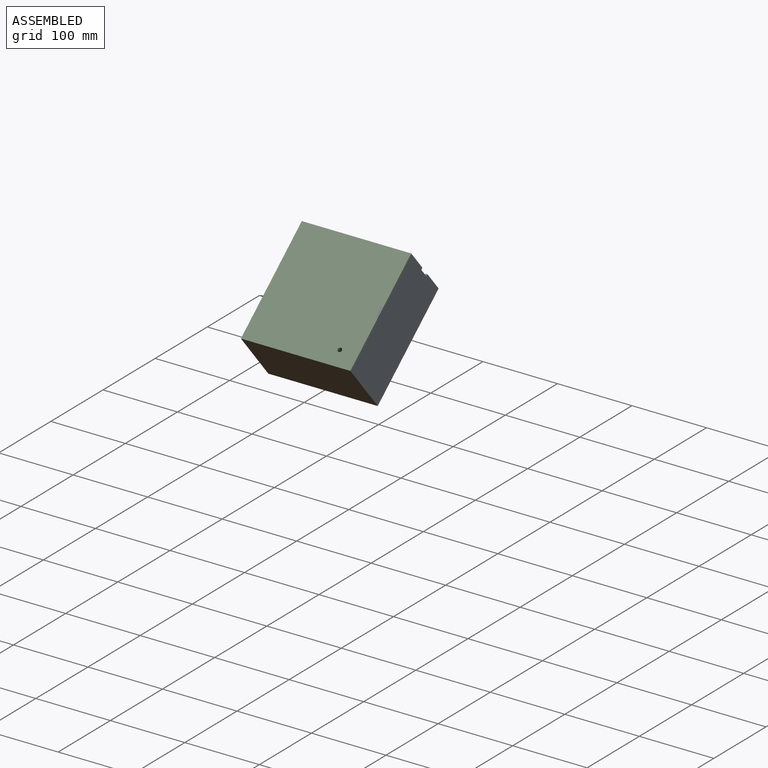
[diagram: assembled view]
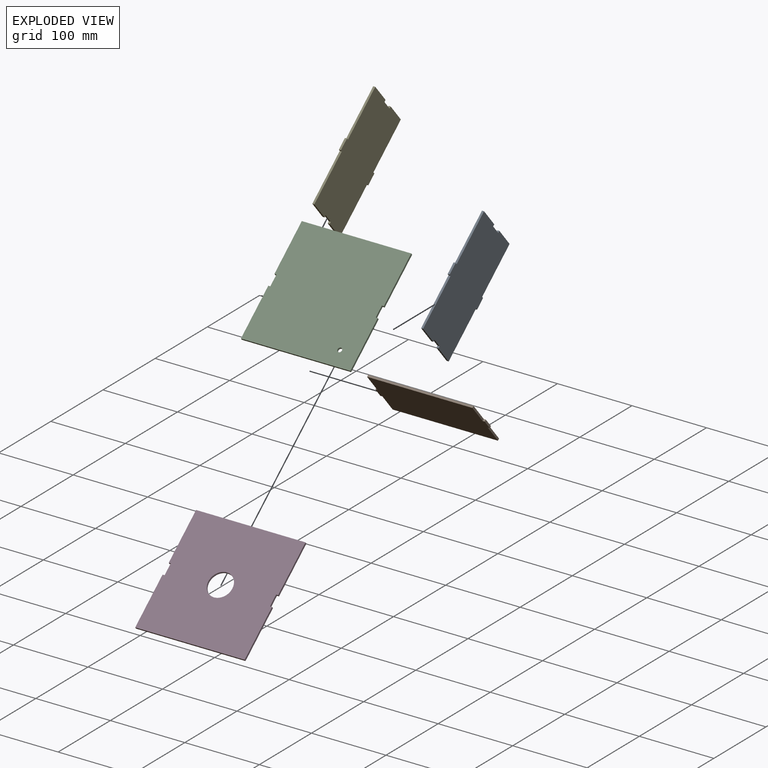
[diagram: exploded view]
GUIDED TOUR — MATED ASSEMBLY (Onshape document d76c6599e7d002cd686ecf26, AutoMate assembly d76c6599e7d002cd686ecf26_e36d5f2bbf383f3093187b48_688001cffb6befddc7492a28_default)

This assembly has 5 components, labeled P0..P4 below (a component is one placed occurrence of a part; the same part can appear more than once), held together by 4 mates. A mate is a constraint between two components; its type names the relative motion it leaves free:
  FASTENED — locks the two components together rigidly (no relative motion).
Axis/direction vectors are unit vectors and 'through' points are millimeter coordinates, both in the assembly's world frame.

MATES
  1. FASTENED "Fastened 3": P4 <-> P3, direction (0.000, -0.766, -0.643) through (92.63, 109.84, 14.27) mm
  2. FASTENED "Fastened 4": P1 <-> P4, direction (0.000, -0.643, 0.766) through (92.63, 28.08, 7.14) mm
  3. FASTENED "Fastened 1": P0 <-> P2, direction (0.000, -0.766, -0.643) through (236.77, 59.09, 74.74) mm
  4. FASTENED "Fastened 2": P0 <-> P3, direction (0.000, 0.766, 0.643) through (236.77, 121.51, 24.06) mm

ASSEMBLY ORDER
  1. P2 — the base component [order verified]
  2. P1 [order verified]
  3. P0 [order verified]
  4. P3 [order verified]
  5. P4 [order verified]
Order-tag legend:
  [order verified] — this step's position reverses a verified removal order: the component was checked to insert without passing through the ones already placed.

Of the 5 components, 5 carry the full construction recipe — the FeatureScript program that regenerates the part's solid from scratch; the rest are supplied as boundary geometry only.
Each toured component is shown spotlighted twice — in the assembled view, then in the exploded view, where a leader line traces a displaced component back to its assembled socket (saturated green if recipe-attached, orange if geometry-only; every other component desaturated gray) — followed by its recipe or geometry summary and the mates that hold it.
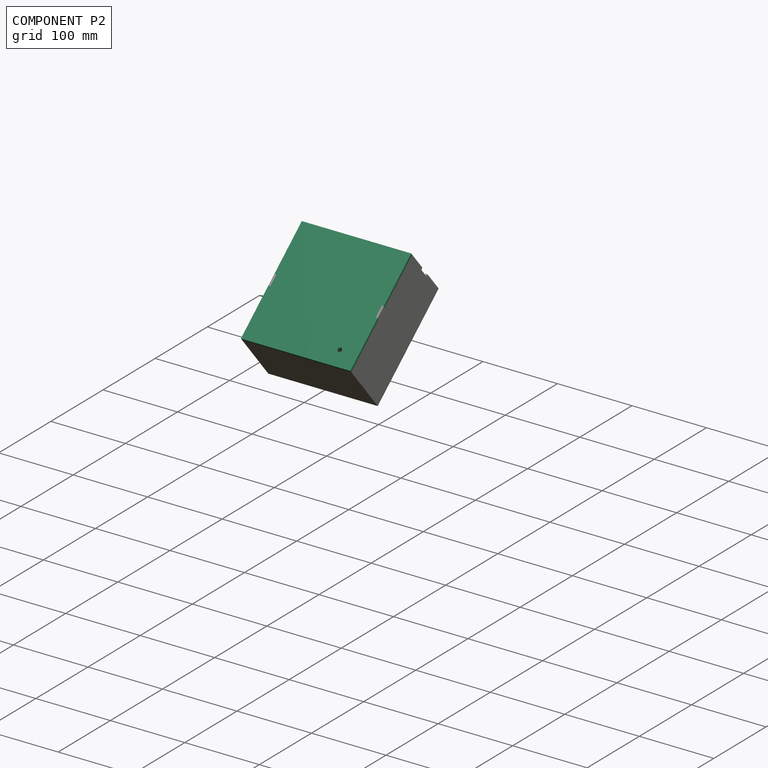
[diagram: component P2 — assembled]
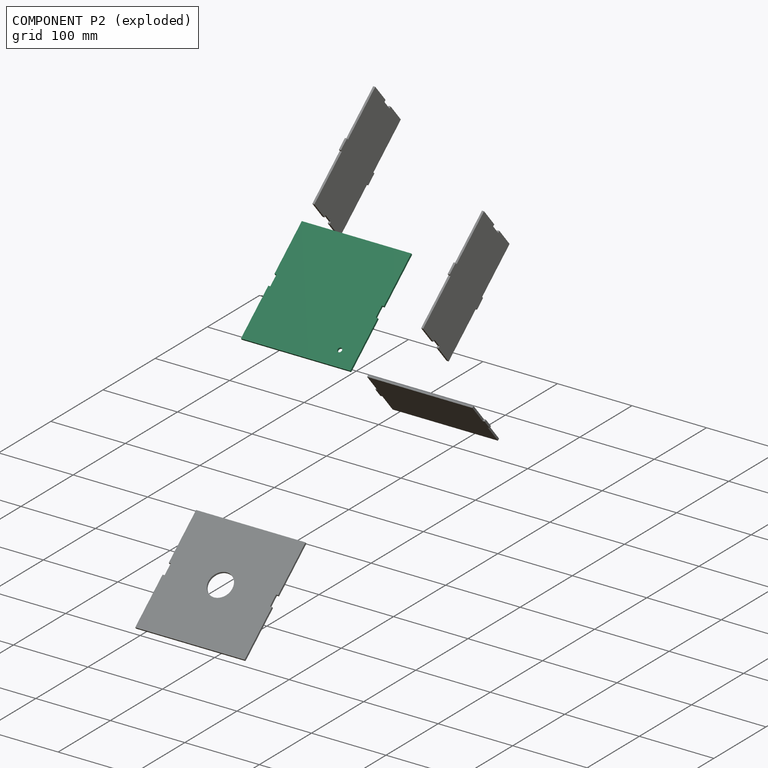
[diagram: component P2 — exploded]
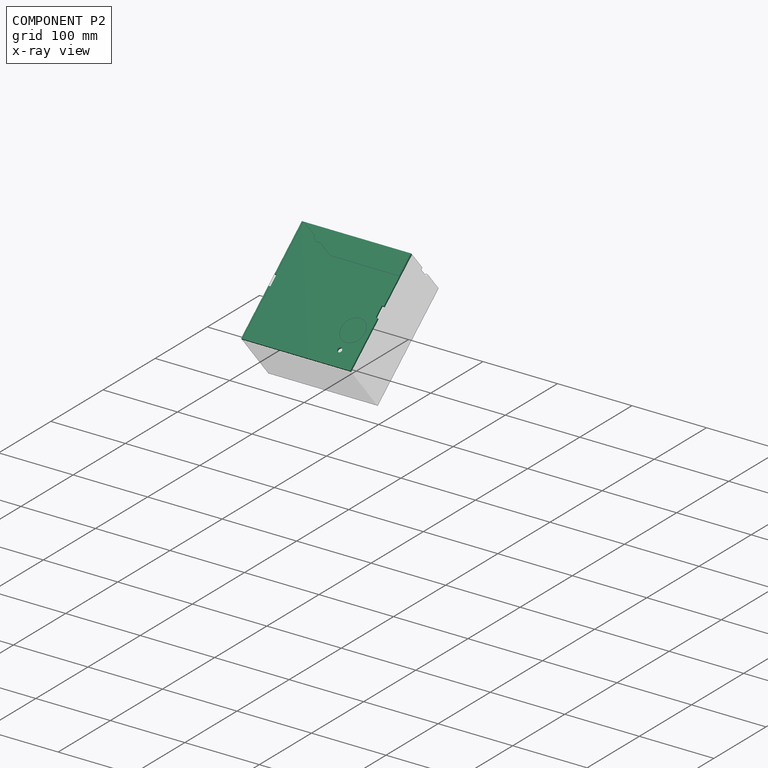
[diagram: component P2 — x-ray view]
COMPONENT P2 — recipe-attached (CADFS 00246261, mesh-verified: the recipe's output STEP matches this component's geometry to below the mesh-comparison resolution (tessellation chordal tolerance ~0.318 mm)).
Held by: FASTENED mate "Fastened 1" to P0.
Construction recipe (FeatureScript — the CAD program that rebuilds this solid; sketch coordinates are in the units given by the * unit suffixes, e.g. mm):

FeatureScript 1511;
import(path : "onshape/std/geometry.fs", version : "1511.0");
import(path : "onshape/std/common.fs", version : "1511.0");
const mm = millimeter;
const VERTEX = EntityType.VERTEX;
const EDGE = EntityType.EDGE;
const FACE = EntityType.FACE;
const BODY = EntityType.BODY;
function v(x, y){return vector(x, y);}
function OD(order){return orderDisambiguation(order);}
function OSD(set){return originalSetDisambiguation(set);}
function TD(topology){return topologyDisambiguation(topology);}
function TDD(query){return trueDependencyDisambiguation(query);}
function sQuery(a, b, c) {return sketchEntityQuery(a, b, c);}

annotation { "Feature Type Name" : "Feature", "Feature Type Description" : "" }
export const myFeature = defineFeature(function(context is Context, id is Id, definition is map)
    precondition{}
    {
        {
            var Q0;
            Q0=qCreatedBy(makeId("Front.planeOp"),FACE);
            var sketch = newSketch(context, id + "F0", { "sketchPlane" : qUnion([Q0])});
            skLineSegment(sketch, "E0.bottom", {"start": v(-81.08, 118.1) * mm, "end": v(65.81, 118.1) * mm});
            skLineSegment(sketch, "E0.top", {"start": v(-81.08, -34.3) * mm, "end": v(65.81, -34.3) * mm});
            skLineSegment(sketch, "E0.left", {"start": v(-81.08, 118.1) * mm, "end": v(-81.08, -34.3) * mm});
            skLineSegment(sketch, "E0.right", {"start": v(65.81, 118.1) * mm, "end": v(65.81, -34.3) * mm});
            skLineSegment(sketch, "E1", {"start": v(0, 120.84) * mm, "end": v(0, 118.1) * mm});
            skLineSegment(sketch, "E2.MirrorCS", {"start": v(-15.24, 120.84) * mm, "end": v(-15.24, 118.1) * mm});
            skLineSegment(sketch, "E3.MirrorCS", {"start": v(-7.62, -37.05) * mm, "end": v(-15.24, -37.05) * mm});
            skLineSegment(sketch, "E4.MirrorCS", {"start": v(-15.24, -37.05) * mm, "end": v(-15.24, -34.3) * mm});
            skLineSegment(sketch, "E5.MirrorCS", {"start": v(-7.62, -37.05) * mm, "end": v(0, -37.05) * mm});
            skLineSegment(sketch, "E6.MirrorCS", {"start": v(0, -37.05) * mm, "end": v(0, -34.3) * mm});
            skLineSegment(sketch, "E7", {"start": v(-78.33, 49.52) * mm, "end": v(-81.08, 49.52) * mm});
            skLineSegment(sketch, "E8", {"start": v(-15.24, 120.84) * mm, "end": v(0, 120.84) * mm});
            skLineSegment(sketch, "E9.MirrorCS", {"start": v(-78.33, 34.28) * mm, "end": v(-81.08, 34.28) * mm});
            skLineSegment(sketch, "E10", {"start": v(-78.33, 49.52) * mm, "end": v(-78.33, 34.28) * mm});
            skLineSegment(sketch, "E11", {"start": v(-7.63, 118.1) * mm, "end": v(-7.63, -34.3) * mm, "construction": true});
            skLineSegment(sketch, "E12.MirrorCS", {"start": v(63.07, 49.52) * mm, "end": v(65.81, 49.52) * mm});
            skLineSegment(sketch, "E13.MirrorCS", {"start": v(63.07, 49.52) * mm, "end": v(63.07, 34.28) * mm});
            skLineSegment(sketch, "E14.MirrorCS", {"start": v(63.07, 34.28) * mm, "end": v(65.81, 34.28) * mm});
            skCircle(sketch, "E15", {"center": v(40.8, -14.25) * mm, "radius": 2.92 * mm});
            skSolve(sketch);
        }
        {
            var Q0;
            {var subQ0=sQuery(id+"F0.wireOp",EDGE,"E0.left");Q0=makeQuery(id+"F0.imprint","IMPRINT",FACE,{"disambiguationData":[TD([[makeQuery(id+"F0.imprint","IMPRINT",EDGE,{"derivedFrom":subQ0}),1.0]])]});}
            var Q1;
            Q1=makeQuery(id+"F0.imprint","IMPRINT",FACE,{"disambiguationData":[TD([[makeQuery(id+"F0.imprint","IMPRINT",EDGE,{"derivedFrom":sQuery(id+"F0.wireOp",EDGE,"Afd0L3Ea-njuU-8vJm-DEHg-CMs5uG4HDwlt")}),-1.0]])]});
            extrude(context, id + "F1", {"entities" : qUnion([Q0, Q1]), "depth" : 2.74 * mm});
        }
    });
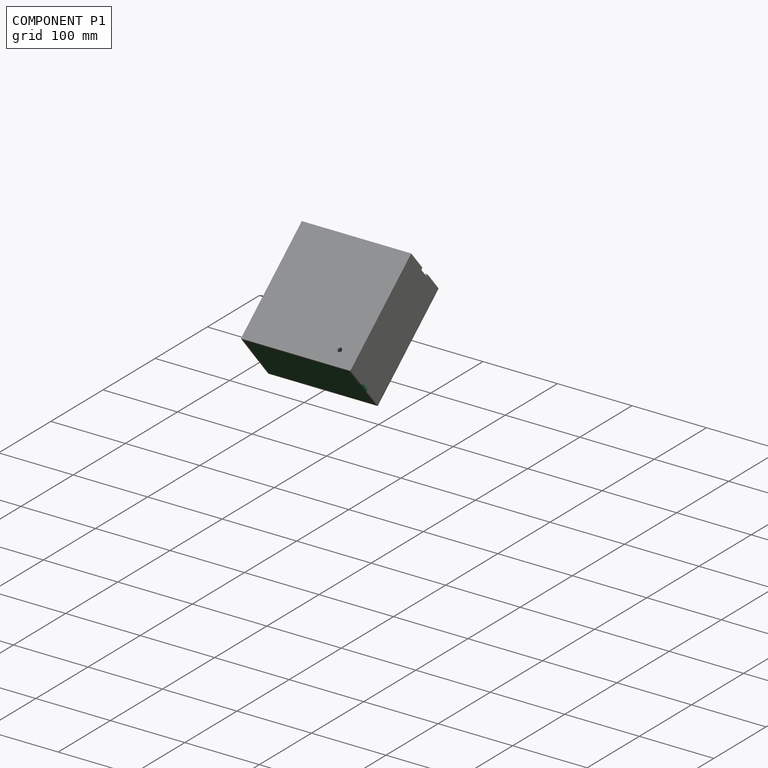
[diagram: component P1 — assembled]
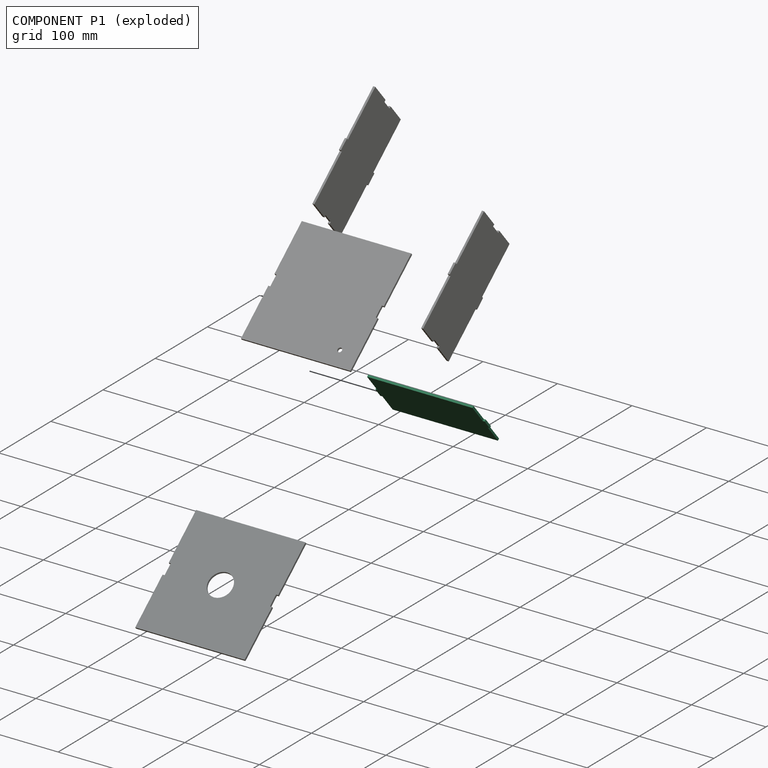
[diagram: component P1 — exploded]
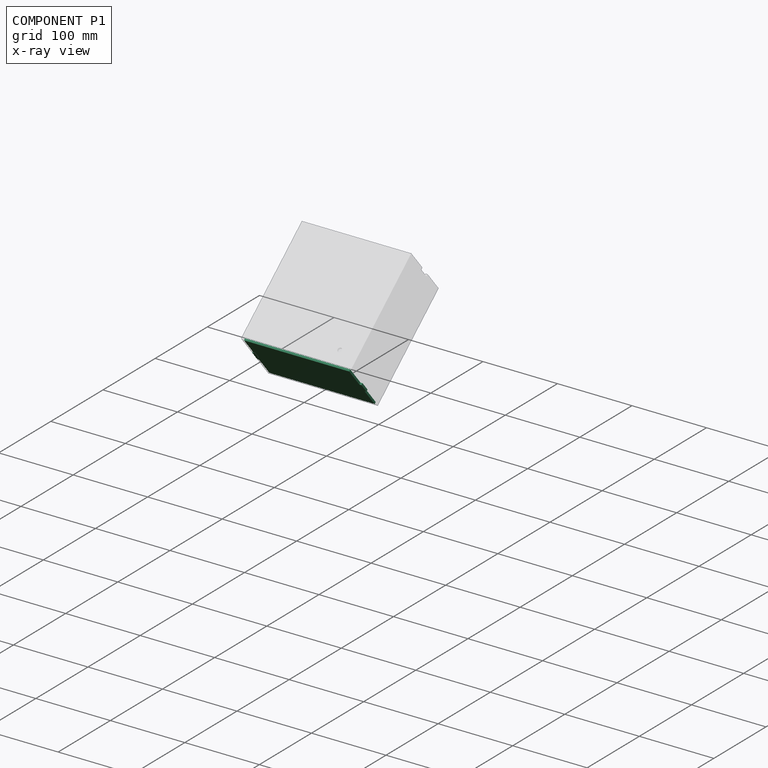
[diagram: component P1 — x-ray view]
COMPONENT P1 — recipe-attached (CADFS 00246263, mesh-verified: the recipe's output STEP matches this component's geometry to below the mesh-comparison resolution (tessellation chordal tolerance ~0.248 mm)).
Held by: FASTENED mate "Fastened 4" to P4.
Construction recipe (FeatureScript — the CAD program that rebuilds this solid; sketch coordinates are in the units given by the * unit suffixes, e.g. mm):

FeatureScript 1511;
import(path : "onshape/std/geometry.fs", version : "1511.0");
import(path : "onshape/std/common.fs", version : "1511.0");
const mm = millimeter;
const VERTEX = EntityType.VERTEX;
const EDGE = EntityType.EDGE;
const FACE = EntityType.FACE;
const BODY = EntityType.BODY;
function v(x, y){return vector(x, y);}
function OD(order){return orderDisambiguation(order);}
function OSD(set){return originalSetDisambiguation(set);}
function TD(topology){return topologyDisambiguation(topology);}
function TDD(query){return trueDependencyDisambiguation(query);}
function sQuery(a, b, c) {return sketchEntityQuery(a, b, c);}

annotation { "Feature Type Name" : "Feature", "Feature Type Description" : "" }
export const myFeature = defineFeature(function(context is Context, id is Id, definition is map)
    precondition{}
    {
        {
            var Q0;
            Q0=qCreatedBy(makeId("Front.planeOp"),FACE);
            var sketch = newSketch(context, id + "F0", { "sketchPlane" : qUnion([Q0])});
            skLineSegment(sketch, "E0.bottom", {"start": v(-87.2, 30.48) * mm, "end": v(54.2, 30.48) * mm});
            skLineSegment(sketch, "E0.top", {"start": v(-87.2, -45.72) * mm, "end": v(54.2, -45.72) * mm});
            skLineSegment(sketch, "E0.left", {"start": v(-87.2, 30.48) * mm, "end": v(-87.2, -45.72) * mm});
            skLineSegment(sketch, "E0.right", {"start": v(54.2, 30.48) * mm, "end": v(54.2, -45.72) * mm});
            skLineSegment(sketch, "E1", {"start": v(-16.5, 30.48) * mm, "end": v(-16.5, -45.72) * mm, "construction": true});
            skLineSegment(sketch, "E2", {"start": v(-87.2, -7.62) * mm, "end": v(54.2, -7.62) * mm, "construction": true});
            skLineSegment(sketch, "E3", {"start": v(-24.11, 27.73) * mm, "end": v(-24.11, 30.48) * mm});
            skLineSegment(sketch, "E4.MirrorCS", {"start": v(-8.87, 27.73) * mm, "end": v(-8.87, 30.48) * mm});
            skLineSegment(sketch, "E5", {"start": v(-24.11, 27.73) * mm, "end": v(-8.87, 27.73) * mm});
            skLineSegment(sketch, "E6.MirrorCS", {"start": v(-24.11, -42.98) * mm, "end": v(-8.87, -42.98) * mm});
            skLineSegment(sketch, "E7.MirrorCS", {"start": v(-8.87, -42.98) * mm, "end": v(-8.87, -45.72) * mm});
            skLineSegment(sketch, "E8.MirrorCS", {"start": v(-24.11, -42.98) * mm, "end": v(-24.11, -45.72) * mm});
            skLineSegment(sketch, "E9.MirrorCS", {"start": v(-89.94, 0) * mm, "end": v(-87.2, 0) * mm});
            skLineSegment(sketch, "E10.MirrorCS", {"start": v(-89.94, -15.24) * mm, "end": v(-87.2, -15.24) * mm});
            skLineSegment(sketch, "E11.MirrorCS", {"start": v(-89.94, 0) * mm, "end": v(-89.94, -15.24) * mm});
            skLineSegment(sketch, "E12.MirrorCS", {"start": v(56.95, 0) * mm, "end": v(56.95, -15.24) * mm});
            skLineSegment(sketch, "E13.MirrorCS", {"start": v(56.95, 0) * mm, "end": v(54.2, 0) * mm});
            skLineSegment(sketch, "E14.MirrorCS", {"start": v(56.95, -15.24) * mm, "end": v(54.2, -15.24) * mm});
            skSolve(sketch);
        }
        {
            var Q0;
            {var subQ10=sQuery(id+"F0.wireOp",EDGE,"E3");Q0=makeQuery(id+"F0.imprint","IMPRINT",FACE,{"disambiguationData":[TD([[makeQuery(id+"F0.imprint","IMPRINT",EDGE,{"derivedFrom":subQ10}),1.0]])]});}
            var Q1;
            Q1=makeQuery(id+"F0.imprint","IMPRINT",FACE,{"disambiguationData":[TD([[makeQuery(id+"F0.imprint","IMPRINT",EDGE,{"derivedFrom":sQuery(id+"F0.wireOp",EDGE,"2a6bfd6c-9bbf-46f3-97a7-c3288baa15e50.MirrorCS")}),-1.0]])]});
            var Q2;
            {var subQ0=sQuery(id+"F0.wireOp",EDGE,"E9.MirrorCS");Q2=makeQuery(id+"F0.imprint","IMPRINT",FACE,{"disambiguationData":[TD([[makeQuery(id+"F0.imprint","IMPRINT",EDGE,{"derivedFrom":subQ0}),-1.0]])]});}
            var Q3;
            Q3=makeQuery(id+"F0.imprint","IMPRINT",FACE,{"disambiguationData":[TD([[makeQuery(id+"F0.imprint","IMPRINT",EDGE,{"derivedFrom":sQuery(id+"F0.wireOp",EDGE,"E12.MirrorCS")}),-1.0]])]});
            var Q4;
            {var subQ0=sQuery(id+"F0.wireOp",EDGE,"E3");Q4=makeQuery(id+"F0.imprint","IMPRINT",FACE,{"disambiguationData":[TD([[makeQuery(id+"F0.imprint","IMPRINT",EDGE,{"derivedFrom":subQ0}),-1.0]])]});}
            var Q5;
            Q5=makeQuery(id+"F0.imprint","IMPRINT",FACE,{"disambiguationData":[TD([[makeQuery(id+"F0.imprint","IMPRINT",EDGE,{"derivedFrom":sQuery(id+"F0.wireOp",EDGE,"E6.MirrorCS")}),-1.0]])]});
            extrude(context, id + "F1", {"entities" : qUnion([Q0, Q1, Q2, Q3, Q4, Q5]), "depth" : 2.74 * mm});
        }
    });
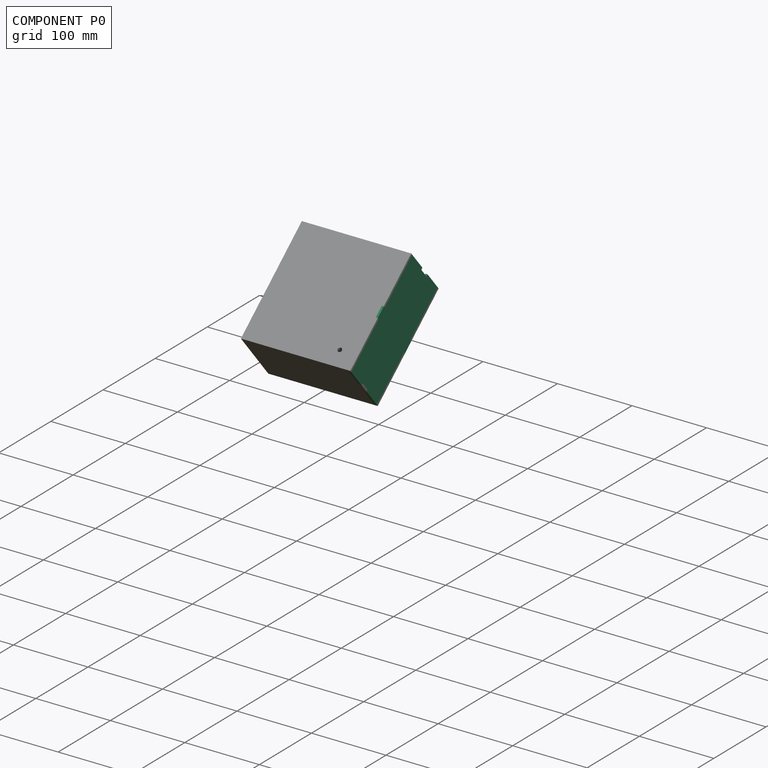
[diagram: component P0 — assembled]
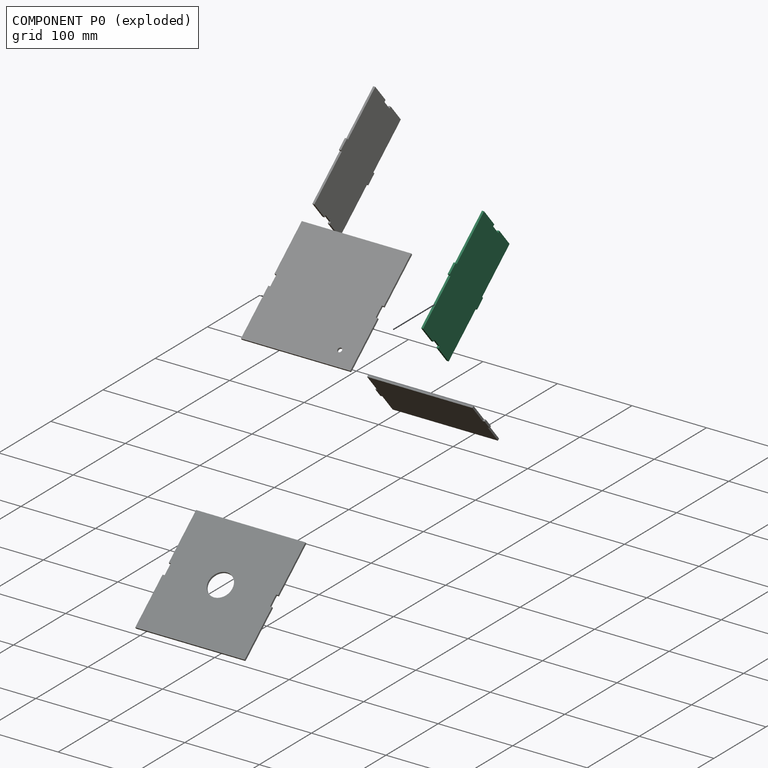
[diagram: component P0 — exploded]
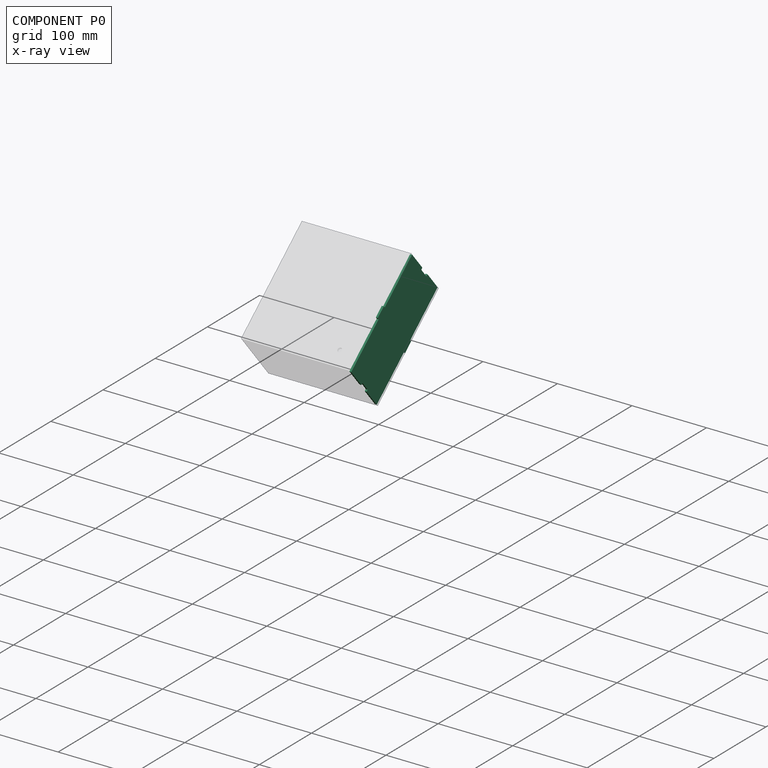
[diagram: component P0 — x-ray view]
COMPONENT P0 — recipe-attached (CADFS 00246262, mesh-verified: the recipe's output STEP matches this component's geometry to below the mesh-comparison resolution (tessellation chordal tolerance ~0.259 mm)).
Held by: FASTENED mate "Fastened 1" to P2; FASTENED mate "Fastened 2" to P3.
Construction recipe (FeatureScript — the CAD program that rebuilds this solid; sketch coordinates are in the units given by the * unit suffixes, e.g. mm):

FeatureScript 1511;
import(path : "onshape/std/geometry.fs", version : "1511.0");
import(path : "onshape/std/common.fs", version : "1511.0");
const mm = millimeter;
const VERTEX = EntityType.VERTEX;
const EDGE = EntityType.EDGE;
const FACE = EntityType.FACE;
const BODY = EntityType.BODY;
function v(x, y){return vector(x, y);}
function OD(order){return orderDisambiguation(order);}
function OSD(set){return originalSetDisambiguation(set);}
function TD(topology){return topologyDisambiguation(topology);}
function TDD(query){return trueDependencyDisambiguation(query);}
function sQuery(a, b, c) {return sketchEntityQuery(a, b, c);}

annotation { "Feature Type Name" : "Feature", "Feature Type Description" : "" }
export const myFeature = defineFeature(function(context is Context, id is Id, definition is map)
    precondition{}
    {
        {
            var Q0;
            Q0=qCreatedBy(makeId("Front.planeOp"),FACE);
            var sketch = newSketch(context, id + "F0", { "sketchPlane" : qUnion([Q0])});
            skLineSegment(sketch, "E0.bottom", {"start": v(-38.1, 84.25) * mm, "end": v(38.1, 84.25) * mm});
            skLineSegment(sketch, "E0.top", {"start": v(-38.1, -68.15) * mm, "end": v(38.1, -68.15) * mm});
            skLineSegment(sketch, "E0.left", {"start": v(-38.1, 84.25) * mm, "end": v(-38.1, -68.15) * mm});
            skLineSegment(sketch, "E0.right", {"start": v(38.1, 84.25) * mm, "end": v(38.1, -68.15) * mm});
            skLineSegment(sketch, "E1", {"start": v(-40.84, 15.67) * mm, "end": v(-38.1, 15.67) * mm});
            skLineSegment(sketch, "E2.MirrorCS", {"start": v(-40.84, 0.43) * mm, "end": v(-38.1, 0.43) * mm});
            skLineSegment(sketch, "E3", {"start": v(-40.84, 15.67) * mm, "end": v(-40.84, 0.43) * mm});
            skLineSegment(sketch, "E4", {"start": v(0, 84.25) * mm, "end": v(0, -68.15) * mm, "construction": true});
            skLineSegment(sketch, "E5.MirrorCS", {"start": v(40.84, 15.67) * mm, "end": v(38.1, 15.67) * mm});
            skLineSegment(sketch, "E6.MirrorCS", {"start": v(40.84, 15.67) * mm, "end": v(40.84, 0.43) * mm});
            skLineSegment(sketch, "E7.MirrorCS", {"start": v(40.84, 0.43) * mm, "end": v(38.1, 0.43) * mm});
            skLineSegment(sketch, "E8", {"start": v(-38.1, 8.05) * mm, "end": v(38.1, 8.05) * mm, "construction": true});
            skLineSegment(sketch, "E9", {"start": v(-7.62, 81.5) * mm, "end": v(-7.62, 84.25) * mm});
            skLineSegment(sketch, "E10.MirrorCS", {"start": v(7.62, 81.5) * mm, "end": v(7.62, 84.25) * mm});
            skLineSegment(sketch, "E11", {"start": v(-7.62, 81.5) * mm, "end": v(7.62, 81.5) * mm});
            skLineSegment(sketch, "E12.MirrorCS", {"start": v(-7.62, -65.41) * mm, "end": v(7.62, -65.41) * mm});
            skLineSegment(sketch, "E13.MirrorCS", {"start": v(7.62, -65.41) * mm, "end": v(7.62, -68.15) * mm});
            skLineSegment(sketch, "E14.MirrorCS", {"start": v(-7.62, -65.41) * mm, "end": v(-7.62, -68.15) * mm});
            skSolve(sketch);
        }
        {
            var Q0;
            {var subQ9=sQuery(id+"F0.wireOp",EDGE,"E0.right");Q0=makeQuery(id+"F0.imprint","IMPRINT",FACE,{"disambiguationData":[TD([[makeQuery(id+"F0.imprint","IMPRINT",EDGE,{"derivedFrom":subQ9}),-1.0]])]});}
            var Q1;
            {var subQ0=sQuery(id+"F0.wireOp",EDGE,"E1");Q1=makeQuery(id+"F0.imprint","IMPRINT",FACE,{"disambiguationData":[TD([[makeQuery(id+"F0.imprint","IMPRINT",EDGE,{"derivedFrom":subQ0}),-1.0]])]});}
            var Q2;
            {var subQ0=sQuery(id+"F0.wireOp",EDGE,"E5.MirrorCS");Q2=makeQuery(id+"F0.imprint","IMPRINT",FACE,{"disambiguationData":[TD([[makeQuery(id+"F0.imprint","IMPRINT",EDGE,{"derivedFrom":subQ0}),1.0]])]});}
            extrude(context, id + "F1", {"entities" : qUnion([Q0, Q1, Q2]), "depth" : 2.74 * mm});
        }
    });
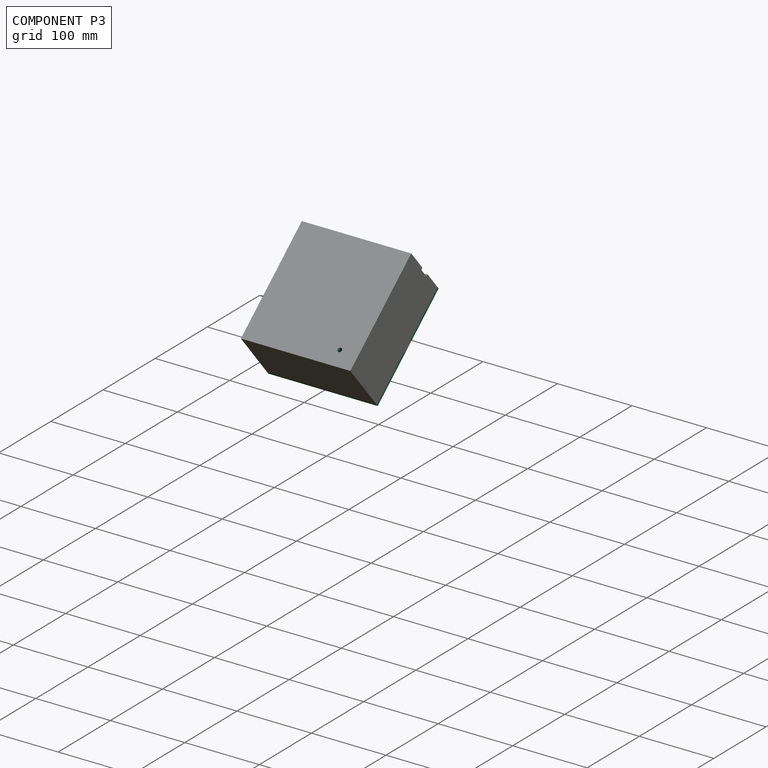
[diagram: component P3 — assembled]
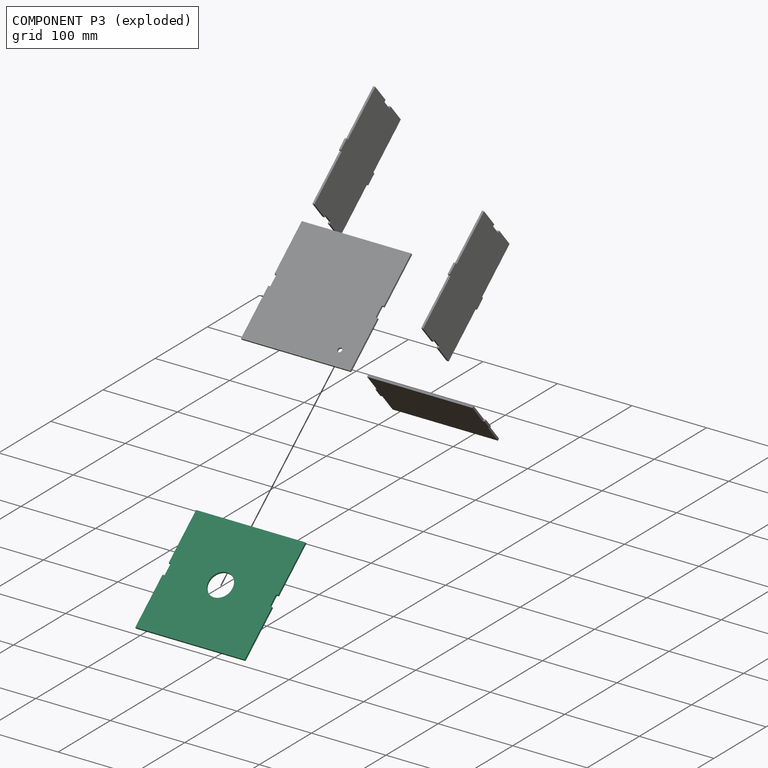
[diagram: component P3 — exploded]
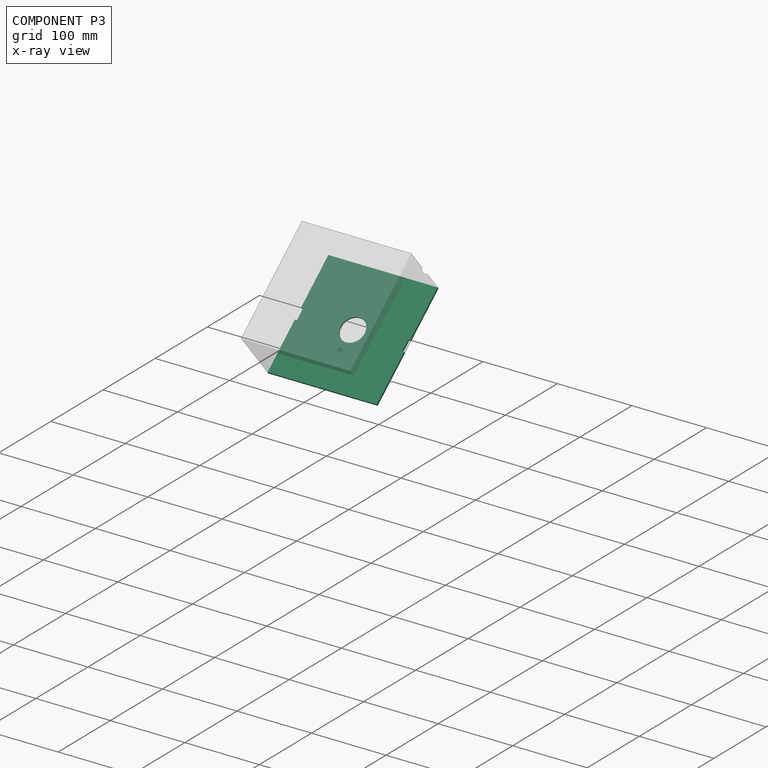
[diagram: component P3 — x-ray view]
COMPONENT P3 — recipe-attached (CADFS 00246260, mesh-verified: the recipe's output STEP matches this component's geometry to below the mesh-comparison resolution (tessellation chordal tolerance ~0.318 mm)).
Held by: FASTENED mate "Fastened 3" to P4; FASTENED mate "Fastened 2" to P0.
Construction recipe (FeatureScript — the CAD program that rebuilds this solid; sketch coordinates are in the units given by the * unit suffixes, e.g. mm):

FeatureScript 1511;
import(path : "onshape/std/geometry.fs", version : "1511.0");
import(path : "onshape/std/common.fs", version : "1511.0");
const mm = millimeter;
const VERTEX = EntityType.VERTEX;
const EDGE = EntityType.EDGE;
const FACE = EntityType.FACE;
const BODY = EntityType.BODY;
function v(x, y){return vector(x, y);}
function OD(order){return orderDisambiguation(order);}
function OSD(set){return originalSetDisambiguation(set);}
function TD(topology){return topologyDisambiguation(topology);}
function TDD(query){return trueDependencyDisambiguation(query);}
function sQuery(a, b, c) {return sketchEntityQuery(a, b, c);}

annotation { "Feature Type Name" : "Feature", "Feature Type Description" : "" }
export const myFeature = defineFeature(function(context is Context, id is Id, definition is map)
    precondition{}
    {
        {
            var Q0;
            Q0=qCreatedBy(makeId("Front.planeOp"),FACE);
            var sketch = newSketch(context, id + "F0", { "sketchPlane" : qUnion([Q0])});
            skLineSegment(sketch, "E0.bottom", {"start": v(-81.08, 118.1) * mm, "end": v(65.81, 118.1) * mm});
            skLineSegment(sketch, "E0.top", {"start": v(-81.08, -34.3) * mm, "end": v(65.81, -34.3) * mm});
            skLineSegment(sketch, "E0.left", {"start": v(-81.08, 118.1) * mm, "end": v(-81.08, -34.3) * mm});
            skLineSegment(sketch, "E0.right", {"start": v(65.81, 118.1) * mm, "end": v(65.81, -34.3) * mm});
            skLineSegment(sketch, "E1", {"start": v(0, 120.84) * mm, "end": v(0, 118.1) * mm});
            skLineSegment(sketch, "E2.MirrorCS", {"start": v(-15.24, 120.84) * mm, "end": v(-15.24, 118.1) * mm});
            skLineSegment(sketch, "E3.MirrorCS", {"start": v(-7.62, -37.05) * mm, "end": v(-15.24, -37.05) * mm});
            skLineSegment(sketch, "E4.MirrorCS", {"start": v(-15.24, -37.05) * mm, "end": v(-15.24, -34.3) * mm});
            skLineSegment(sketch, "E5.MirrorCS", {"start": v(-7.62, -37.05) * mm, "end": v(0, -37.05) * mm});
            skLineSegment(sketch, "E6.MirrorCS", {"start": v(0, -37.05) * mm, "end": v(0, -34.3) * mm});
            skLineSegment(sketch, "E7", {"start": v(-78.33, 49.52) * mm, "end": v(-81.08, 49.52) * mm});
            skLineSegment(sketch, "E8", {"start": v(-15.24, 120.84) * mm, "end": v(0, 120.84) * mm});
            skLineSegment(sketch, "E9.MirrorCS", {"start": v(-78.33, 34.28) * mm, "end": v(-81.08, 34.28) * mm});
            skLineSegment(sketch, "E10", {"start": v(-78.33, 49.52) * mm, "end": v(-78.33, 34.28) * mm});
            skCircle(sketch, "E11", {"center": v(-7.63, 41.9) * mm, "radius": 16.15 * mm});
            skLineSegment(sketch, "E12", {"start": v(-7.63, 118.1) * mm, "end": v(-7.63, -34.3) * mm, "construction": true});
            skLineSegment(sketch, "E13.MirrorCS", {"start": v(63.07, 49.52) * mm, "end": v(65.81, 49.52) * mm});
            skLineSegment(sketch, "E14.MirrorCS", {"start": v(63.07, 49.52) * mm, "end": v(63.07, 34.28) * mm});
            skLineSegment(sketch, "E15.MirrorCS", {"start": v(63.07, 34.28) * mm, "end": v(65.81, 34.28) * mm});
            skSolve(sketch);
        }
        {
            var Q0;
            {var subQ0=sQuery(id+"F0.wireOp",EDGE,"E0.left");Q0=makeQuery(id+"F0.imprint","IMPRINT",FACE,{"disambiguationData":[TD([[makeQuery(id+"F0.imprint","IMPRINT",EDGE,{"derivedFrom":subQ0}),1.0]])]});}
            var Q1;
            Q1=makeQuery(id+"F0.imprint","IMPRINT",FACE,{"disambiguationData":[TD([[makeQuery(id+"F0.imprint","IMPRINT",EDGE,{"derivedFrom":sQuery(id+"F0.wireOp",EDGE,"Afd0L3Ea-njuU-8vJm-DEHg-CMs5uG4HDwlt")}),-1.0]])]});
            extrude(context, id + "F1", {"entities" : qUnion([Q0, Q1]), "depth" : 2.74 * mm});
        }
    });
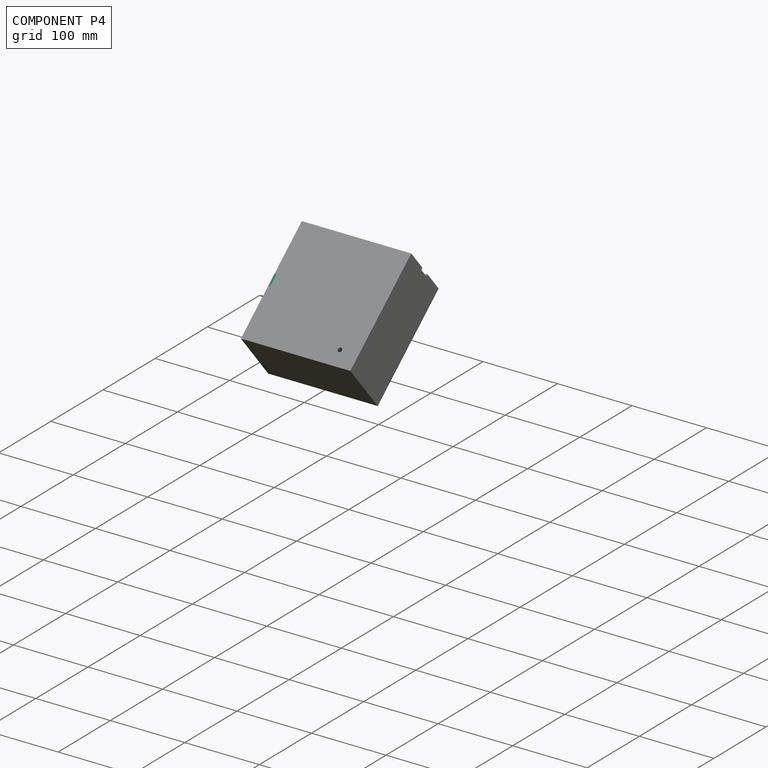
[diagram: component P4 — assembled]
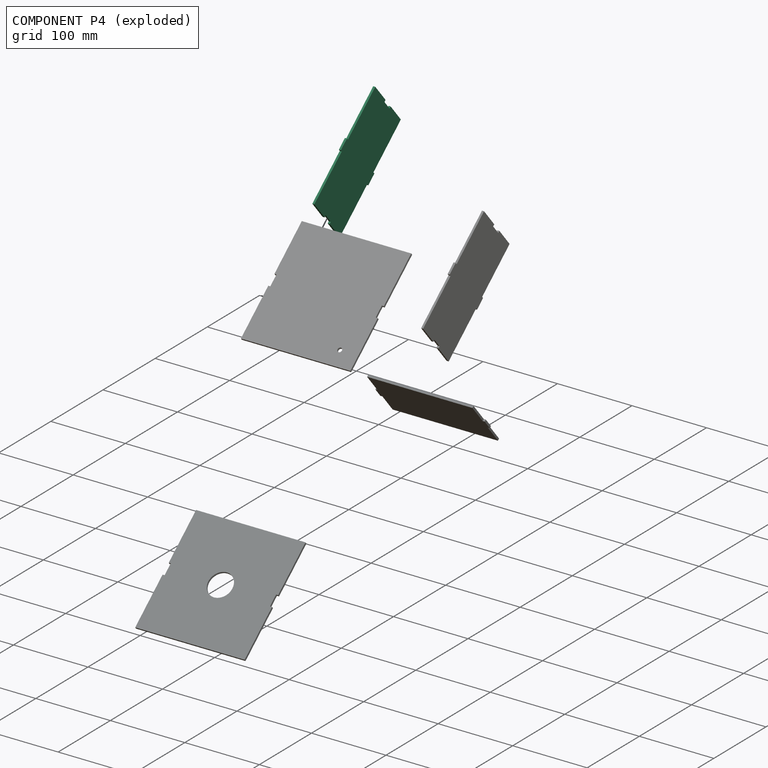
[diagram: component P4 — exploded]
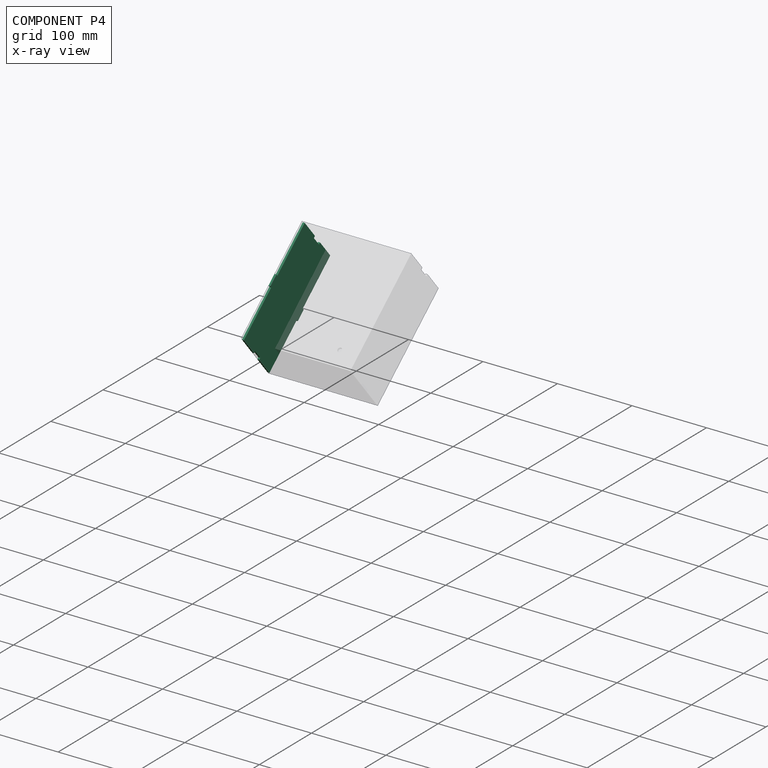
[diagram: component P4 — x-ray view]
COMPONENT P4 — same part as P0 (CADFS 00246262); its construction recipe is shown at P0.
Held by: FASTENED mate "Fastened 3" to P3; FASTENED mate "Fastened 4" to P1.
PROVENANCE & LICENSES
Assembly (occurrences, transforms, mates, per-part STEP geometry): AutoMate dataset, Zenodo record 7776208, CC0.
Construction recipes: CADFS (HuggingFace VladPyatov/CADFS, CC-BY-4.0, layered over the ABC dataset), FeatureScript reconstruction programs keyed by ABC model id.
Join: ABC meta listings map ABC model id -> Onshape documentId; within a shared document, parts are matched by geometric signature (bounding-box dims + volume at 0.1% relative tolerance, exact B-rep face/solid counts).
Verification: 5 of this assembly's 5 components carry a recipe attachment, and every attachment is mesh-verified: the CADFS STEP and the AutoMate member STEP were compared as meshes in their shared local frame (symmetric sampled-point-to-mesh distance); worst across the 5 attachments: below the mesh-comparison resolution (tessellation chordal tolerance ~0.318 mm) on a 212 mm part.
Renders: orthographic iso camera (az 35 / el 25); the floor grid conveys scale (grid pitch printed in each image; no ruler). In the exploded view each component is displaced by its stored offset vector: the offsets alone carry the explosion direction (mate normal/axis signs are not orientation cues and do not encode it), and separation distances are assigned per mate-chain, not proportionally to assembly-order depth.
